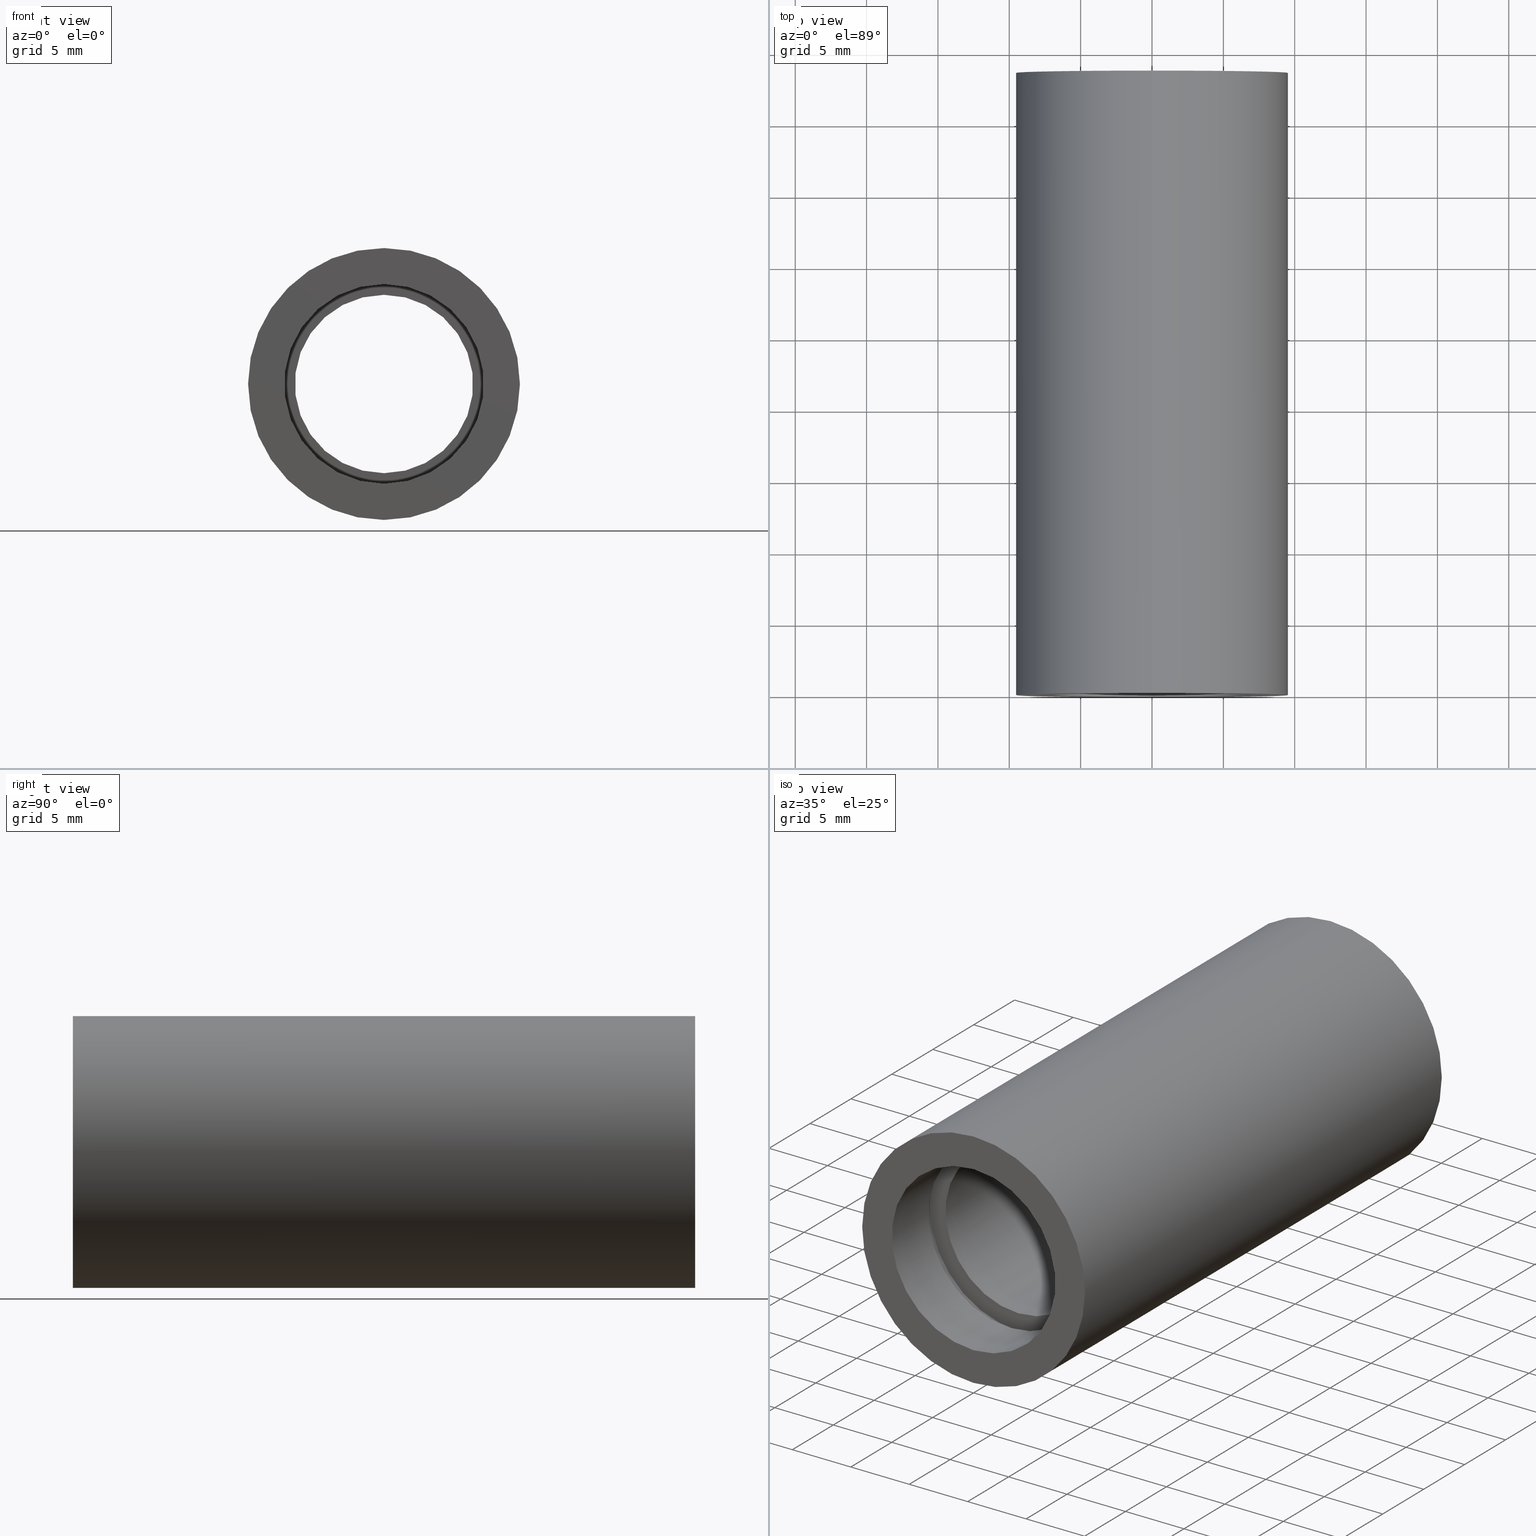
[diagram: canonical four-view strip — front | top / right | iso, engineering-drawing reading convention]
A machine part, canonical four-view strip (front | top / right | iso — engineering-drawing reading convention). The complete STEP part file that produces these views, byte-faithful:
ISO-10303-21;
HEADER;
FILE_DESCRIPTION (( 'STEP AP214' ),
    '1' );
FILE_NAME ('503085.STEP',
    '2019-09-11T02:25:14',
    ( '' ),
    ( '' ),
    'SwSTEP 2.0',
    'SolidWorks 2016',
    '' );
FILE_SCHEMA (( 'AUTOMOTIVE_DESIGN' ));
ENDSEC;

DATA;
#1 = VECTOR ( 'NONE', #55, 1000.000000000000000 ) ;
#2 = DIRECTION ( 'NONE',  ( -0.0000000000000000000, 1.000000000000000000, -0.0000000000000000000 ) ) ;
#3 = AXIS2_PLACEMENT_3D ( 'NONE', #93, #468, #227 ) ;
#4 = SURFACE_STYLE_USAGE ( .BOTH. , #146 ) ;
#5 = DIRECTION ( 'NONE',  ( 0.0000000000000000000, 0.0000000000000000000, 1.000000000000000000 ) ) ;
#6 = VERTEX_POINT ( 'NONE', #369 ) ;
#7 = ORIENTED_EDGE ( 'NONE', *, *, #201, .F. ) ;
#8 = SURFACE_STYLE_USAGE ( .BOTH. , #247 ) ;
#9 = PRODUCT_CONTEXT ( 'NONE', #37, 'mechanical' ) ;
#10 = DIRECTION ( 'NONE',  ( -0.0000000000000000000, 1.000000000000000000, -0.0000000000000000000 ) ) ;
#11 = AXIS2_PLACEMENT_3D ( 'NONE', #404, #603, #166 ) ;
#12 = ADVANCED_BREP_SHAPE_REPRESENTATION ( '503085', ( #85, #111 ), #131 ) ;
#13 = PRESENTATION_STYLE_ASSIGNMENT (( #370 ) ) ;
#14 = EDGE_LOOP ( 'NONE', ( #354, #500 ) ) ;
#15 = CARTESIAN_POINT ( 'NONE',  ( 0.0000000000000000000, 161.3761669434274500, 0.0000000000000000000 ) ) ;
#16 = ORIENTED_EDGE ( 'NONE', *, *, #459, .F. ) ;
#17 = EDGE_CURVE ( 'NONE', #423, #407, #350, .T. ) ;
#18 = DIRECTION ( 'NONE',  ( -0.0000000000000000000, 1.000000000000000000, -0.0000000000000000000 ) ) ;
#19 = DIRECTION ( 'NONE',  ( -0.0000000000000000000, 1.000000000000000000, 0.0000000000000000000 ) ) ;
#20 = ORIENTED_EDGE ( 'NONE', *, *, #168, .F. ) ;
#21 = AXIS2_PLACEMENT_3D ( 'NONE', #315, #89, #269 ) ;
#22 = ORIENTED_EDGE ( 'NONE', *, *, #587, .F. ) ;
#23 = DIRECTION ( 'NONE',  ( 0.0000000000000000000, 0.0000000000000000000, 1.000000000000000000 ) ) ;
#24 = DIRECTION ( 'NONE',  ( 0.0000000000000000000, 0.0000000000000000000, 1.000000000000000000 ) ) ;
#25 = ORIENTED_EDGE ( 'NONE', *, *, #277, .F. ) ;
#26 = ORIENTED_EDGE ( 'NONE', *, *, #174, .T. ) ;
#27 = EDGE_CURVE ( 'NONE', #262, #540, #597, .T. ) ;
#28 = AXIS2_PLACEMENT_3D ( 'NONE', #15, #343, #548 ) ;
#29 = DIRECTION ( 'NONE',  ( -0.0000000000000000000, 1.000000000000000000, -0.0000000000000000000 ) ) ;
#30 = LINE ( 'NONE', #64, #1 ) ;
#31 = FACE_OUTER_BOUND ( 'NONE', #79, .T. ) ;
#32 = CARTESIAN_POINT ( 'NONE',  ( 0.0000000000000000000, 161.3761669434274500, 0.0000000000000000000 ) ) ;
#33 = DIRECTION ( 'NONE',  ( -0.0000000000000000000, 1.000000000000000000, 0.0000000000000000000 ) ) ;
#34 = VECTOR ( 'NONE', #532, 1000.000000000000000 ) ;
#35 = ORIENTED_EDGE ( 'NONE', *, *, #559, .T. ) ;
#36 = ORIENTED_EDGE ( 'NONE', *, *, #563, .T. ) ;
#37 = APPLICATION_CONTEXT ( 'automotive_design' ) ;
#38 = ADVANCED_FACE ( 'NONE', ( #250 ), #566, .F. ) ;
#39 = SURFACE_SIDE_STYLE ('',( #477 ) ) ;
#40 = PRODUCT_DEFINITION_SHAPE ( 'NONE', 'NONE',  #441 ) ;
#41 = AXIS2_PLACEMENT_3D ( 'NONE', #202, #19, #501 ) ;
#42 = FILL_AREA_STYLE_COLOUR ( '', #218 ) ;
#43 = VERTEX_POINT ( 'NONE', #101 ) ;
#44 = VERTEX_POINT ( 'NONE', #185 ) ;
#45 = DIRECTION ( 'NONE',  ( 0.0000000000000000000, 0.0000000000000000000, 1.000000000000000000 ) ) ;
#46 = FACE_OUTER_BOUND ( 'NONE', #425, .T. ) ;
#47 =( NAMED_UNIT ( * ) SI_UNIT ( $, .STERADIAN. ) SOLID_ANGLE_UNIT ( ) );
#48 = PLANE ( 'NONE',  #243 ) ;
#49 = DIRECTION ( 'NONE',  ( 1.000000000000000000, 0.0000000000000000000, 0.0000000000000000000 ) ) ;
#50 =( NAMED_UNIT ( * ) SI_UNIT ( $, .STERADIAN. ) SOLID_ANGLE_UNIT ( ) );
#51 = CARTESIAN_POINT ( 'NONE',  ( 0.0000000000000000000, 38.09999999999999400, 0.0000000000000000000 ) ) ;
#52 = EDGE_LOOP ( 'NONE', ( #16, #106 ) ) ;
#53 = FACE_OUTER_BOUND ( 'NONE', #601, .T. ) ;
#54 = PRESENTATION_LAYER_ASSIGNMENT (  '', '', ( #212 ) ) ;
#55 = DIRECTION ( 'NONE',  ( -0.0000000000000000000, 1.000000000000000000, -0.0000000000000000000 ) ) ;
#56 = AXIS2_PLACEMENT_3D ( 'NONE', #467, #612, #5 ) ;
#57 = PRESENTATION_STYLE_ASSIGNMENT (( #522 ) ) ;
#58 = EDGE_LOOP ( 'NONE', ( #531, #511 ) ) ;
#59 = ORIENTED_EDGE ( 'NONE', *, *, #390, .F. ) ;
#60 = DIRECTION ( 'NONE',  ( -0.0000000000000000000, 1.000000000000000000, -0.0000000000000000000 ) ) ;
#61 = VECTOR ( 'NONE', #541, 1000.000000000000000 ) ;
#62 = EDGE_CURVE ( 'NONE', #540, #262, #610, .T. ) ;
#63 = MECHANICAL_DESIGN_GEOMETRIC_PRESENTATION_REPRESENTATION (  '', ( #212 ), #110 ) ;
#64 = CARTESIAN_POINT ( 'NONE',  ( 1.166476076187856400E-015, 161.3761669434274500, -9.525000000000019900 ) ) ;
#65 = ORIENTED_EDGE ( 'NONE', *, *, #125, .T. ) ;
#66 = ORIENTED_EDGE ( 'NONE', *, *, #236, .T. ) ;
#67 = VECTOR ( 'NONE', #130, 1000.000000000000000 ) ;
#68 = SURFACE_STYLE_FILL_AREA ( #386 ) ;
#69 = CARTESIAN_POINT ( 'NONE',  ( 9.307315673519907200E-016, 4.499999999999976000, -7.600000000000019200 ) ) ;
#70 = COLOUR_RGB ( '',1.000000000000000000, 1.000000000000000000, 1.000000000000000000 ) ;
#71 = ORIENTED_EDGE ( 'NONE', *, *, #180, .F. ) ;
#72 = AXIS2_PLACEMENT_3D ( 'NONE', #460, #170, #609 ) ;
#73 = EDGE_LOOP ( 'NONE', ( #529, #319 ) ) ;
#74 = DIRECTION ( 'NONE',  ( 0.0000000000000000000, 0.0000000000000000000, 1.000000000000000000 ) ) ;
#75 = CIRCLE ( 'NONE', #273, 7.600000000000019200 ) ;
#76 = ADVANCED_FACE ( 'NONE', ( #83, #605 ), #537, .F. ) ;
#77 = DIRECTION ( 'NONE',  ( -0.0000000000000000000, 1.000000000000000000, -0.0000000000000000000 ) ) ;
#78 = LINE ( 'NONE', #143, #34 ) ;
#79 = EDGE_LOOP ( 'NONE', ( #20, #36, #393, #279 ) ) ;
#80 = DIRECTION ( 'NONE',  ( 0.0000000000000000000, 0.0000000000000000000, 1.000000000000000000 ) ) ;
#81 = CIRCLE ( 'NONE', #230, 7.600000000000019200 ) ;
#82 = ADVANCED_FACE ( 'NONE', ( #430, #286 ), #48, .F. ) ;
#83 = FACE_BOUND ( 'NONE', #499, .T. ) ;
#84 =( NAMED_UNIT ( * ) PLANE_ANGLE_UNIT ( ) SI_UNIT ( $, .RADIAN. ) );
#85 = MANIFOLD_SOLID_BREP ( '��ת1', #573 ) ;
#86 = MECHANICAL_DESIGN_GEOMETRIC_PRESENTATION_REPRESENTATION (  '', ( #309 ), #481 ) ;
#87 = FILL_AREA_STYLE ('',( #224 ) ) ;
#88 = ADVANCED_FACE ( 'NONE', ( #31 ), #358, .F. ) ;
#89 = DIRECTION ( 'NONE',  ( -0.0000000000000000000, 1.000000000000000000, -0.0000000000000000000 ) ) ;
#90 = ORIENTED_EDGE ( 'NONE', *, *, #321, .F. ) ;
#91 =( GEOMETRIC_REPRESENTATION_CONTEXT ( 3 ) GLOBAL_UNCERTAINTY_ASSIGNED_CONTEXT ( ( #123 ) ) GLOBAL_UNIT_ASSIGNED_CONTEXT ( ( #231, #318, #184 ) ) REPRESENTATION_CONTEXT ( 'NONE', 'WORKASPACE' ) );
#92 = EDGE_CURVE ( 'NONE', #594, #320, #458, .T. ) ;
#93 = CARTESIAN_POINT ( 'NONE',  ( 0.0000000000000000000, 161.3761669434274500, 0.0000000000000000000 ) ) ;
#94 = LINE ( 'NONE', #122, #237 ) ;
#95 = FACE_BOUND ( 'NONE', #58, .T. ) ;
#96 = CARTESIAN_POINT ( 'NONE',  ( 7.654042494670981300E-016, 38.09999999999999400, -6.250000000000019500 ) ) ;
#97 = DIRECTION ( 'NONE',  ( 0.0000000000000000000, -1.000000000000000000, 0.0000000000000000000 ) ) ;
#98 = AXIS2_PLACEMENT_3D ( 'NONE', #228, #270, #614 ) ;
#99 = AXIS2_PLACEMENT_3D ( 'NONE', #192, #391, #389 ) ;
#100 = CARTESIAN_POINT ( 'NONE',  ( 7.654042494670981300E-016, 5.499999999999976900, -6.250000000000019500 ) ) ;
#101 = CARTESIAN_POINT ( 'NONE',  ( 1.166476076187856400E-015, -2.775557561562891400E-014, -9.525000000000019900 ) ) ;
#102 = DIRECTION ( 'NONE',  ( 0.0000000000000000000, 0.0000000000000000000, 1.000000000000000000 ) ) ;
#103 = PRESENTATION_STYLE_ASSIGNMENT (( #607 ) ) ;
#104 =( LENGTH_UNIT ( ) NAMED_UNIT ( * ) SI_UNIT ( .MILLI., .METRE. ) );
#105 = CARTESIAN_POINT ( 'NONE',  ( 0.0000000000000000000, 161.3761669434274500, 0.0000000000000000000 ) ) ;
#106 = ORIENTED_EDGE ( 'NONE', *, *, #443, .F. ) ;
#107 = CARTESIAN_POINT ( 'NONE',  ( 0.0000000000000000000, 38.09999999999999400, 6.250000000000019500 ) ) ;
#108 = ORIENTED_EDGE ( 'NONE', *, *, #480, .F. ) ;
#109 =( LENGTH_UNIT ( ) NAMED_UNIT ( * ) SI_UNIT ( .MILLI., .METRE. ) );
#110 =( GEOMETRIC_REPRESENTATION_CONTEXT ( 3 ) GLOBAL_UNCERTAINTY_ASSIGNED_CONTEXT ( ( #167 ) ) GLOBAL_UNIT_ASSIGNED_CONTEXT ( ( #104, #479, #282 ) ) REPRESENTATION_CONTEXT ( 'NONE', 'WORKASPACE' ) );
#111 = AXIS2_PLACEMENT_3D ( 'NONE', #325, #332, #49 ) ;
#112 = CARTESIAN_POINT ( 'NONE',  ( 0.0000000000000000000, 161.3761669434274500, 7.200000000000011700 ) ) ;
#113 = EDGE_CURVE ( 'NONE', #407, #44, #395, .T. ) ;
#114 = ORIENTED_EDGE ( 'NONE', *, *, #509, .F. ) ;
#115 = CIRCLE ( 'NONE', #491, 7.000000000000020400 ) ;
#116 =( LENGTH_UNIT ( ) NAMED_UNIT ( * ) SI_UNIT ( .MILLI., .METRE. ) );
#117 = PRODUCT ( '503085', '503085', '', ( #9 ) ) ;
#118 = CARTESIAN_POINT ( 'NONE',  ( 0.0000000000000000000, 43.59999999999998700, 9.525000000000019900 ) ) ;
#119 = AXIS2_PLACEMENT_3D ( 'NONE', #220, #217, #24 ) ;
#120 = PLANE ( 'NONE',  #41 ) ;
#121 = ORIENTED_EDGE ( 'NONE', *, *, #264, .T. ) ;
#122 = CARTESIAN_POINT ( 'NONE',  ( 0.0000000000000000000, 161.3761669434274500, 7.600000000000019200 ) ) ;
#123 = UNCERTAINTY_MEASURE_WITH_UNIT (LENGTH_MEASURE( 1.000000000000000100E-005 ), #231, 'distance_accuracy_value', 'NONE');
#124 = CARTESIAN_POINT ( 'NONE',  ( 0.0000000000000000000, 5.499999999999976900, 0.0000000000000000000 ) ) ;
#125 = EDGE_CURVE ( 'NONE', #408, #368, #419, .T. ) ;
#126 = AXIS2_PLACEMENT_3D ( 'NONE', #375, #152, #232 ) ;
#127 = VERTEX_POINT ( 'NONE', #148 ) ;
#128 = CARTESIAN_POINT ( 'NONE',  ( 0.0000000000000000000, 38.09999999999999400, 0.0000000000000000000 ) ) ;
#129 = CIRCLE ( 'NONE', #11, 7.200000000000012600 ) ;
#130 = DIRECTION ( 'NONE',  ( -0.0000000000000000000, 1.000000000000000000, -0.0000000000000000000 ) ) ;
#131 =( GEOMETRIC_REPRESENTATION_CONTEXT ( 3 ) GLOBAL_UNCERTAINTY_ASSIGNED_CONTEXT ( ( #599 ) ) GLOBAL_UNIT_ASSIGNED_CONTEXT ( ( #623, #619, #47 ) ) REPRESENTATION_CONTEXT ( 'NONE', 'WORKASPACE' ) );
#132 = PLANE ( 'NONE',  #445 ) ;
#133 = ADVANCED_FACE ( 'NONE', ( #556 ), #483, .F. ) ;
#134 = DIRECTION ( 'NONE',  ( -0.0000000000000000000, 1.000000000000000000, -0.0000000000000000000 ) ) ;
#135 = EDGE_LOOP ( 'NONE', ( #267, #66, #561, #223 ) ) ;
#136 = ADVANCED_FACE ( 'NONE', ( #95, #590 ), #482, .F. ) ;
#137 = ORIENTED_EDGE ( 'NONE', *, *, #621, .T. ) ;
#138 =( LENGTH_UNIT ( ) NAMED_UNIT ( * ) SI_UNIT ( .MILLI., .METRE. ) );
#139 = AXIS2_PLACEMENT_3D ( 'NONE', #256, #33, #74 ) ;
#140 = FILL_AREA_STYLE ('',( #562 ) ) ;
#141 = ADVANCED_FACE ( 'NONE', ( #339 ), #496, .T. ) ;
#142 = EDGE_LOOP ( 'NONE', ( #582, #472, #137, #387 ) ) ;
#143 = CARTESIAN_POINT ( 'NONE',  ( 9.307315673519907200E-016, 161.3761669434274500, -7.600000000000019200 ) ) ;
#144 = ORIENTED_EDGE ( 'NONE', *, *, #246, .T. ) ;
#145 = EDGE_CURVE ( 'NONE', #455, #305, #183, .T. ) ;
#146 = SURFACE_SIDE_STYLE ('',( #229 ) ) ;
#147 = VECTOR ( 'NONE', #518, 1000.000000000000000 ) ;
#148 = CARTESIAN_POINT ( 'NONE',  ( 0.0000000000000000000, 38.09999999999999400, 7.600000000000019200 ) ) ;
#149 = DIRECTION ( 'NONE',  ( 0.0000000000000000000, 0.0000000000000000000, 1.000000000000000000 ) ) ;
#150 = ORIENTED_EDGE ( 'NONE', *, *, #264, .F. ) ;
#151 = ORIENTED_EDGE ( 'NONE', *, *, #563, .F. ) ;
#152 = DIRECTION ( 'NONE',  ( 0.0000000000000000000, -1.000000000000000000, 0.0000000000000000000 ) ) ;
#153 = PRESENTATION_LAYER_ASSIGNMENT (  '', '', ( #613 ) ) ;
#154 =( NAMED_UNIT ( * ) SI_UNIT ( $, .STERADIAN. ) SOLID_ANGLE_UNIT ( ) );
#155 = CARTESIAN_POINT ( 'NONE',  ( 0.0000000000000000000, -2.775557561562891400E-014, 7.000000000000020400 ) ) ;
#156 = AXIS2_PLACEMENT_3D ( 'NONE', #238, #97, #293 ) ;
#157 = VERTEX_POINT ( 'NONE', #444 ) ;
#158 = ORIENTED_EDGE ( 'NONE', *, *, #145, .T. ) ;
#159 = STYLED_ITEM ( 'NONE', ( #331 ), #38 ) ;
#160 = CARTESIAN_POINT ( 'NONE',  ( 0.0000000000000000000, 161.3761669434274500, 9.525000000000019900 ) ) ;
#161 =( GEOMETRIC_REPRESENTATION_CONTEXT ( 3 ) GLOBAL_UNCERTAINTY_ASSIGNED_CONTEXT ( ( #505 ) ) GLOBAL_UNIT_ASSIGNED_CONTEXT ( ( #109, #333, #154 ) ) REPRESENTATION_CONTEXT ( 'NONE', 'WORKASPACE' ) );
#162 = FILL_AREA_STYLE ('',( #558 ) ) ;
#163 = VERTEX_POINT ( 'NONE', #155 ) ;
#164 = ORIENTED_EDGE ( 'NONE', *, *, #180, .T. ) ;
#165 = DIRECTION ( 'NONE',  ( -0.0000000000000000000, 1.000000000000000000, -0.0000000000000000000 ) ) ;
#166 = DIRECTION ( 'NONE',  ( 0.0000000000000000000, 0.0000000000000000000, 1.000000000000000000 ) ) ;
#167 = UNCERTAINTY_MEASURE_WITH_UNIT (LENGTH_MEASURE( 1.000000000000000100E-005 ), #104, 'distance_accuracy_value', 'NONE');
#168 = EDGE_CURVE ( 'NONE', #328, #440, #75, .T. ) ;
#169 = AXIS2_PLACEMENT_3D ( 'NONE', #199, #388, #593 ) ;
#170 = DIRECTION ( 'NONE',  ( -0.0000000000000000000, 1.000000000000000000, -0.0000000000000000000 ) ) ;
#171 = CARTESIAN_POINT ( 'NONE',  ( 7.654042494670981300E-016, 161.3761669434274500, -6.250000000000019500 ) ) ;
#172 = CYLINDRICAL_SURFACE ( 'NONE', #169, 7.000000000000020400 ) ;
#173 = FILL_AREA_STYLE_COLOUR ( '', #176 ) ;
#174 = EDGE_CURVE ( 'NONE', #399, #320, #382, .T. ) ;
#175 = ORIENTED_EDGE ( 'NONE', *, *, #125, .F. ) ;
#176 = COLOUR_RGB ( '',1.000000000000000000, 1.000000000000000000, 1.000000000000000000 ) ;
#177 = AXIS2_PLACEMENT_3D ( 'NONE', #295, #303, #244 ) ;
#178 = ORIENTED_EDGE ( 'NONE', *, *, #17, .F. ) ;
#179 = ORIENTED_EDGE ( 'NONE', *, *, #426, .F. ) ;
#180 = EDGE_CURVE ( 'NONE', #368, #6, #301, .T. ) ;
#181 = CARTESIAN_POINT ( 'NONE',  ( 0.0000000000000000000, 161.3761669434274500, 6.250000000000019500 ) ) ;
#182 = VECTOR ( 'NONE', #10, 1000.000000000000000 ) ;
#183 = CIRCLE ( 'NONE', #99, 7.600000000000019200 ) ;
#184 =( NAMED_UNIT ( * ) SI_UNIT ( $, .STERADIAN. ) SOLID_ANGLE_UNIT ( ) );
#185 = CARTESIAN_POINT ( 'NONE',  ( 0.0000000000000000000, 4.499999999999976000, 7.000000000000020400 ) ) ;
#186 = EDGE_CURVE ( 'NONE', #545, #377, #198, .T. ) ;
#187 = PRESENTATION_LAYER_ASSIGNMENT (  '', '', ( #503 ) ) ;
#188 = DIRECTION ( 'NONE',  ( -0.0000000000000000000, 1.000000000000000000, -0.0000000000000000000 ) ) ;
#189 = CARTESIAN_POINT ( 'NONE',  ( 0.0000000000000000000, 39.09999999999999400, 0.0000000000000000000 ) ) ;
#190 = CIRCLE ( 'NONE', #72, 9.525000000000019900 ) ;
#191 = DIRECTION ( 'NONE',  ( 0.0000000000000000000, -0.0000000000000000000, -1.000000000000000000 ) ) ;
#192 = CARTESIAN_POINT ( 'NONE',  ( 0.0000000000000000000, 39.09999999999999400, 0.0000000000000000000 ) ) ;
#193 = ORIENTED_EDGE ( 'NONE', *, *, #621, .F. ) ;
#194 = ORIENTED_EDGE ( 'NONE', *, *, #443, .T. ) ;
#195 = EDGE_CURVE ( 'NONE', #6, #615, #356, .T. ) ;
#196 = DIRECTION ( 'NONE',  ( 0.0000000000000000000, 0.0000000000000000000, 1.000000000000000000 ) ) ;
#197 = AXIS2_PLACEMENT_3D ( 'NONE', #355, #555, #23 ) ;
#198 = CIRCLE ( 'NONE', #177, 7.600000000000019200 ) ;
#199 = CARTESIAN_POINT ( 'NONE',  ( 0.0000000000000000000, 161.3761669434274500, 0.0000000000000000000 ) ) ;
#200 = CARTESIAN_POINT ( 'NONE',  ( 8.817456953860957100E-016, 161.3761669434274500, -7.200000000000011700 ) ) ;
#201 = EDGE_CURVE ( 'NONE', #408, #615, #495, .T. ) ;
#202 = CARTESIAN_POINT ( 'NONE',  ( 6.250000000000019500, 5.499999999999983100, 0.0000000000000000000 ) ) ;
#203 = ORIENTED_EDGE ( 'NONE', *, *, #587, .T. ) ;
#204 = CARTESIAN_POINT ( 'NONE',  ( 0.0000000000000000000, 161.3761669434274500, 0.0000000000000000000 ) ) ;
#205 = CIRCLE ( 'NONE', #565, 7.600000000000019200 ) ;
#206 = AXIS2_PLACEMENT_3D ( 'NONE', #448, #165, #494 ) ;
#207 = DIRECTION ( 'NONE',  ( -0.0000000000000000000, 1.000000000000000000, -0.0000000000000000000 ) ) ;
#208 = PRESENTATION_STYLE_ASSIGNMENT (( #420 ) ) ;
#209 = EDGE_LOOP ( 'NONE', ( #114, #300, #624, #59 ) ) ;
#210 = CYLINDRICAL_SURFACE ( 'NONE', #403, 7.600000000000019200 ) ;
#211 = CARTESIAN_POINT ( 'NONE',  ( 0.0000000000000000000, 161.3761669434274500, 7.600000000000019200 ) ) ;
#212 = STYLED_ITEM ( 'NONE', ( #302 ), #85 ) ;
#213 = COLOUR_RGB ( '',1.000000000000000000, 1.000000000000000000, 1.000000000000000000 ) ;
#214 = DIRECTION ( 'NONE',  ( -0.0000000000000000000, 1.000000000000000000, -0.0000000000000000000 ) ) ;
#215 = EDGE_CURVE ( 'NONE', #163, #423, #115, .T. ) ;
#216 = AXIS2_PLACEMENT_3D ( 'NONE', #490, #486, #298 ) ;
#217 = DIRECTION ( 'NONE',  ( -0.0000000000000000000, 1.000000000000000000, -0.0000000000000000000 ) ) ;
#218 = COLOUR_RGB ( '',1.000000000000000000, 1.000000000000000000, 1.000000000000000000 ) ;
#219 = ORIENTED_EDGE ( 'NONE', *, *, #321, .T. ) ;
#220 = CARTESIAN_POINT ( 'NONE',  ( 0.0000000000000000000, -2.775557561562891400E-014, 0.0000000000000000000 ) ) ;
#221 = SURFACE_STYLE_FILL_AREA ( #415 ) ;
#222 = CARTESIAN_POINT ( 'NONE',  ( 9.307315673519907200E-016, 38.09999999999999400, -7.600000000000019200 ) ) ;
#223 = ORIENTED_EDGE ( 'NONE', *, *, #174, .F. ) ;
#224 = FILL_AREA_STYLE_COLOUR ( '', #571 ) ;
#225 = ADVANCED_FACE ( 'NONE', ( #514 ), #172, .F. ) ;
#226 = EDGE_LOOP ( 'NONE', ( #151, #312, #235, #512 ) ) ;
#227 = DIRECTION ( 'NONE',  ( 0.0000000000000000000, 0.0000000000000000000, 1.000000000000000000 ) ) ;
#228 = CARTESIAN_POINT ( 'NONE',  ( 0.0000000000000000000, 38.09999999999999400, 0.0000000000000000000 ) ) ;
#229 = SURFACE_STYLE_FILL_AREA ( #429 ) ;
#230 = AXIS2_PLACEMENT_3D ( 'NONE', #128, #29, #360 ) ;
#231 =( LENGTH_UNIT ( ) NAMED_UNIT ( * ) SI_UNIT ( .MILLI., .METRE. ) );
#232 = DIRECTION ( 'NONE',  ( 0.0000000000000000000, -0.0000000000000000000, -1.000000000000000000 ) ) ;
#233 = CARTESIAN_POINT ( 'NONE',  ( 9.307315673519907200E-016, 161.3761669434274500, -7.600000000000019200 ) ) ;
#234 = SURFACE_STYLE_USAGE ( .BOTH. , #289 ) ;
#235 = ORIENTED_EDGE ( 'NONE', *, *, #345, .T. ) ;
#236 = EDGE_CURVE ( 'NONE', #43, #594, #30, .T. ) ;
#237 = VECTOR ( 'NONE', #310, 1000.000000000000000 ) ;
#238 = CARTESIAN_POINT ( 'NONE',  ( 7.000000000000020400, 4.499999999999983100, 0.0000000000000000000 ) ) ;
#239 = DIRECTION ( 'NONE',  ( 0.0000000000000000000, 0.0000000000000000000, 1.000000000000000000 ) ) ;
#240 = AXIS2_PLACEMENT_3D ( 'NONE', #324, #374, #45 ) ;
#241 = ORIENTED_EDGE ( 'NONE', *, *, #113, .F. ) ;
#242 = PRESENTATION_STYLE_ASSIGNMENT (( #549 ) ) ;
#243 = AXIS2_PLACEMENT_3D ( 'NONE', #432, #539, #191 ) ;
#244 = DIRECTION ( 'NONE',  ( 0.0000000000000000000, 0.0000000000000000000, 1.000000000000000000 ) ) ;
#245 = ORIENTED_EDGE ( 'NONE', *, *, #236, .F. ) ;
#246 = EDGE_CURVE ( 'NONE', #157, #553, #488, .T. ) ;
#247 = SURFACE_SIDE_STYLE ('',( #502 ) ) ;
#248 = AXIS2_PLACEMENT_3D ( 'NONE', #253, #18, #451 ) ;
#249 = CIRCLE ( 'NONE', #572, 7.600000000000019200 ) ;
#250 = FACE_OUTER_BOUND ( 'NONE', #297, .T. ) ;
#251 = DIRECTION ( 'NONE',  ( -0.0000000000000000000, 1.000000000000000000, -0.0000000000000000000 ) ) ;
#252 = DIRECTION ( 'NONE',  ( -0.0000000000000000000, 1.000000000000000000, -0.0000000000000000000 ) ) ;
#253 = CARTESIAN_POINT ( 'NONE',  ( 0.0000000000000000000, 5.499999999999976900, 0.0000000000000000000 ) ) ;
#254 = EDGE_LOOP ( 'NONE', ( #144, #400 ) ) ;
#255 = MECHANICAL_DESIGN_GEOMETRIC_PRESENTATION_REPRESENTATION (  '', ( #385 ), #317 ) ;
#256 = CARTESIAN_POINT ( 'NONE',  ( 7.000000000000020400, -1.634585625335647100E-014, 0.0000000000000000000 ) ) ;
#257 = CIRCLE ( 'NONE', #197, 9.525000000000019900 ) ;
#258 = EDGE_CURVE ( 'NONE', #44, #407, #534, .T. ) ;
#259 = STYLED_ITEM ( 'NONE', ( #13 ), #524 ) ;
#260 = SURFACE_SIDE_STYLE ('',( #221 ) ) ;
#261 = ORIENTED_EDGE ( 'NONE', *, *, #186, .F. ) ;
#262 = VERTEX_POINT ( 'NONE', #107 ) ;
#263 =( NAMED_UNIT ( * ) SI_UNIT ( $, .STERADIAN. ) SOLID_ANGLE_UNIT ( ) );
#264 = EDGE_CURVE ( 'NONE', #368, #408, #338, .T. ) ;
#265 = DIRECTION ( 'NONE',  ( 0.0000000000000000000, 0.0000000000000000000, 1.000000000000000000 ) ) ;
#266 = ADVANCED_FACE ( 'NONE', ( #457 ), #428, .F. ) ;
#267 = ORIENTED_EDGE ( 'NONE', *, *, #459, .T. ) ;
#268 = EDGE_LOOP ( 'NONE', ( #121, #65 ) ) ;
#269 = DIRECTION ( 'NONE',  ( 0.0000000000000000000, 0.0000000000000000000, 1.000000000000000000 ) ) ;
#270 = DIRECTION ( 'NONE',  ( -0.0000000000000000000, 1.000000000000000000, -0.0000000000000000000 ) ) ;
#271 = ADVANCED_FACE ( 'NONE', ( #46 ), #210, .F. ) ;
#272 = CYLINDRICAL_SURFACE ( 'NONE', #381, 9.525000000000019900 ) ;
#273 = AXIS2_PLACEMENT_3D ( 'NONE', #442, #60, #543 ) ;
#274 =( NAMED_UNIT ( * ) SI_UNIT ( $, .STERADIAN. ) SOLID_ANGLE_UNIT ( ) );
#275 = UNCERTAINTY_MEASURE_WITH_UNIT (LENGTH_MEASURE( 1.000000000000000100E-005 ), #285, 'distance_accuracy_value', 'NONE');
#276 = SURFACE_SIDE_STYLE ('',( #406 ) ) ;
#277 = EDGE_CURVE ( 'NONE', #553, #157, #349, .T. ) ;
#278 = FACE_OUTER_BOUND ( 'NONE', #433, .T. ) ;
#279 = ORIENTED_EDGE ( 'NONE', *, *, #345, .F. ) ;
#280 = DIRECTION ( 'NONE',  ( 0.0000000000000000000, 0.0000000000000000000, 1.000000000000000000 ) ) ;
#281 = ORIENTED_EDGE ( 'NONE', *, *, #62, .F. ) ;
#282 =( NAMED_UNIT ( * ) SI_UNIT ( $, .STERADIAN. ) SOLID_ANGLE_UNIT ( ) );
#283 = CARTESIAN_POINT ( 'NONE',  ( 8.817456953860959100E-016, 43.59999999999998700, -7.200000000000013500 ) ) ;
#284 = COLOUR_RGB ( '',1.000000000000000000, 1.000000000000000000, 1.000000000000000000 ) ;
#285 =( LENGTH_UNIT ( ) NAMED_UNIT ( * ) SI_UNIT ( .MILLI., .METRE. ) );
#286 = FACE_OUTER_BOUND ( 'NONE', #311, .T. ) ;
#287 = EDGE_CURVE ( 'NONE', #615, #6, #129, .T. ) ;
#288 = STYLED_ITEM ( 'NONE', ( #547 ), #225 ) ;
#289 = SURFACE_SIDE_STYLE ('',( #68 ) ) ;
#290 = CYLINDRICAL_SURFACE ( 'NONE', #240, 7.600000000000019200 ) ;
#291 = EDGE_LOOP ( 'NONE', ( #245, #194, #26, #454 ) ) ;
#292 = ORIENTED_EDGE ( 'NONE', *, *, #390, .T. ) ;
#293 = DIRECTION ( 'NONE',  ( 0.0000000000000000000, -0.0000000000000000000, -1.000000000000000000 ) ) ;
#294 = DIRECTION ( 'NONE',  ( 0.0000000000000000000, 0.0000000000000000000, 1.000000000000000000 ) ) ;
#295 = CARTESIAN_POINT ( 'NONE',  ( 0.0000000000000000000, 5.499999999999976900, 0.0000000000000000000 ) ) ;
#296 = EDGE_CURVE ( 'NONE', #440, #328, #364, .T. ) ;
#297 = EDGE_LOOP ( 'NONE', ( #25, #304, #608, #193 ) ) ;
#298 = DIRECTION ( 'NONE',  ( 0.0000000000000000000, 0.0000000000000000000, 1.000000000000000000 ) ) ;
#299 = PRESENTATION_LAYER_ASSIGNMENT (  '', '', ( #259 ) ) ;
#300 = ORIENTED_EDGE ( 'NONE', *, *, #17, .T. ) ;
#301 = LINE ( 'NONE', #112, #61 ) ;
#302 = PRESENTATION_STYLE_ASSIGNMENT (( #4 ) ) ;
#303 = DIRECTION ( 'NONE',  ( -0.0000000000000000000, 1.000000000000000000, -0.0000000000000000000 ) ) ;
#304 = ORIENTED_EDGE ( 'NONE', *, *, #373, .T. ) ;
#305 = VERTEX_POINT ( 'NONE', #401 ) ;
#306 = CARTESIAN_POINT ( 'NONE',  ( 0.0000000000000000000, 4.499999999999976000, 0.0000000000000000000 ) ) ;
#307 = LINE ( 'NONE', #365, #314 ) ;
#308 = DIRECTION ( 'NONE',  ( -0.0000000000000000000, 1.000000000000000000, -0.0000000000000000000 ) ) ;
#309 = STYLED_ITEM ( 'NONE', ( #103 ), #520 ) ;
#310 = DIRECTION ( 'NONE',  ( -0.0000000000000000000, 1.000000000000000000, -0.0000000000000000000 ) ) ;
#311 = EDGE_LOOP ( 'NONE', ( #219, #478 ) ) ;
#312 = ORIENTED_EDGE ( 'NONE', *, *, #296, .F. ) ;
#313 = PRESENTATION_LAYER_ASSIGNMENT (  '', '', ( #159 ) ) ;
#314 = VECTOR ( 'NONE', #77, 1000.000000000000000 ) ;
#315 = CARTESIAN_POINT ( 'NONE',  ( 0.0000000000000000000, 161.3761669434274500, 0.0000000000000000000 ) ) ;
#316 = ADVANCED_FACE ( 'NONE', ( #604, #526 ), #120, .F. ) ;
#317 =( GEOMETRIC_REPRESENTATION_CONTEXT ( 3 ) GLOBAL_UNCERTAINTY_ASSIGNED_CONTEXT ( ( #340 ) ) GLOBAL_UNIT_ASSIGNED_CONTEXT ( ( #525, #431, #330 ) ) REPRESENTATION_CONTEXT ( 'NONE', 'WORKASPACE' ) );
#318 =( NAMED_UNIT ( * ) PLANE_ANGLE_UNIT ( ) SI_UNIT ( $, .RADIAN. ) );
#319 = ORIENTED_EDGE ( 'NONE', *, *, #509, .T. ) ;
#320 = VERTEX_POINT ( 'NONE', #118 ) ;
#321 = EDGE_CURVE ( 'NONE', #127, #585, #249, .T. ) ;
#322 = LINE ( 'NONE', #171, #617 ) ;
#323 = AXIS2_PLACEMENT_3D ( 'NONE', #105, #476, #102 ) ;
#324 = CARTESIAN_POINT ( 'NONE',  ( 0.0000000000000000000, 161.3761669434274500, 0.0000000000000000000 ) ) ;
#325 = CARTESIAN_POINT ( 'NONE',  ( 0.0000000000000000000, 0.0000000000000000000, 0.0000000000000000000 ) ) ;
#326 =( NAMED_UNIT ( * ) PLANE_ANGLE_UNIT ( ) SI_UNIT ( $, .RADIAN. ) );
#327 = LINE ( 'NONE', #181, #538 ) ;
#328 = VERTEX_POINT ( 'NONE', #69 ) ;
#329 = DIRECTION ( 'NONE',  ( -0.0000000000000000000, 1.000000000000000000, -0.0000000000000000000 ) ) ;
#330 =( NAMED_UNIT ( * ) SI_UNIT ( $, .STERADIAN. ) SOLID_ANGLE_UNIT ( ) );
#331 = PRESENTATION_STYLE_ASSIGNMENT (( #234 ) ) ;
#332 = DIRECTION ( 'NONE',  ( 0.0000000000000000000, 0.0000000000000000000, 1.000000000000000000 ) ) ;
#333 =( NAMED_UNIT ( * ) PLANE_ANGLE_UNIT ( ) SI_UNIT ( $, .RADIAN. ) );
#334 = AXIS2_PLACEMENT_3D ( 'NONE', #497, #551, #352 ) ;
#335 = ORIENTED_EDGE ( 'NONE', *, *, #480, .T. ) ;
#336 = APPLICATION_PROTOCOL_DEFINITION ( 'draft international standard', 'automotive_design', 1998, #536 ) ;
#337 = ORIENTED_EDGE ( 'NONE', *, *, #215, .F. ) ;
#338 = CIRCLE ( 'NONE', #334, 7.200000000000011700 ) ;
#339 = FACE_OUTER_BOUND ( 'NONE', #135, .T. ) ;
#340 = UNCERTAINTY_MEASURE_WITH_UNIT (LENGTH_MEASURE( 1.000000000000000100E-005 ), #525, 'distance_accuracy_value', 'NONE');
#341 = FILL_AREA_STYLE ('',( #346 ) ) ;
#342 = EDGE_CURVE ( 'NONE', #320, #594, #257, .T. ) ;
#343 = DIRECTION ( 'NONE',  ( -0.0000000000000000000, 1.000000000000000000, -0.0000000000000000000 ) ) ;
#344 = LINE ( 'NONE', #233, #560 ) ;
#345 = EDGE_CURVE ( 'NONE', #440, #377, #94, .T. ) ;
#346 = FILL_AREA_STYLE_COLOUR ( '', #284 ) ;
#347 = PRESENTATION_LAYER_ASSIGNMENT (  '', '', ( #288 ) ) ;
#348 = DIRECTION ( 'NONE',  ( 0.0000000000000000000, 0.0000000000000000000, 1.000000000000000000 ) ) ;
#349 = CIRCLE ( 'NONE', #248, 6.250000000000019500 ) ;
#350 = LINE ( 'NONE', #469, #147 ) ;
#351 = PRODUCT_RELATED_PRODUCT_CATEGORY ( 'part', '', ( #117 ) ) ;
#352 = DIRECTION ( 'NONE',  ( 0.0000000000000000000, 0.0000000000000000000, 1.000000000000000000 ) ) ;
#353 = ORIENTED_EDGE ( 'NONE', *, *, #287, .T. ) ;
#354 = ORIENTED_EDGE ( 'NONE', *, *, #296, .T. ) ;
#355 = CARTESIAN_POINT ( 'NONE',  ( 0.0000000000000000000, 43.59999999999998700, 0.0000000000000000000 ) ) ;
#356 = CIRCLE ( 'NONE', #216, 7.200000000000012600 ) ;
#357 = CARTESIAN_POINT ( 'NONE',  ( 0.0000000000000000000, 39.09999999999999400, 7.200000000000011700 ) ) ;
#358 = CYLINDRICAL_SURFACE ( 'NONE', #416, 7.600000000000019200 ) ;
#359 = AXIS2_PLACEMENT_3D ( 'NONE', #306, #308, #348 ) ;
#360 = DIRECTION ( 'NONE',  ( 0.0000000000000000000, 0.0000000000000000000, 1.000000000000000000 ) ) ;
#361 = ORIENTED_EDGE ( 'NONE', *, *, #145, .F. ) ;
#362 = ADVANCED_FACE ( 'NONE', ( #589, #402 ), #595, .F. ) ;
#363 = DIRECTION ( 'NONE',  ( -0.0000000000000000000, 1.000000000000000000, -0.0000000000000000000 ) ) ;
#364 = CIRCLE ( 'NONE', #206, 7.600000000000019200 ) ;
#365 = CARTESIAN_POINT ( 'NONE',  ( 0.0000000000000000000, 161.3761669434274500, 7.000000000000020400 ) ) ;
#366 = CARTESIAN_POINT ( 'NONE',  ( 7.200000000000011700, 39.09999999999998700, 0.0000000000000000000 ) ) ;
#367 = APPLICATION_PROTOCOL_DEFINITION ( 'draft international standard', 'automotive_design', 1998, #37 ) ;
#368 = VERTEX_POINT ( 'NONE', #357 ) ;
#369 = CARTESIAN_POINT ( 'NONE',  ( 0.0000000000000000000, 43.59999999999998700, 7.200000000000012600 ) ) ;
#370 = SURFACE_STYLE_USAGE ( .BOTH. , #39 ) ;
#371 = SURFACE_STYLE_FILL_AREA ( #162 ) ;
#372 = ADVANCED_FACE ( 'NONE', ( #564 ), #272, .T. ) ;
#373 = EDGE_CURVE ( 'NONE', #553, #540, #322, .T. ) ;
#374 = DIRECTION ( 'NONE',  ( -0.0000000000000000000, 1.000000000000000000, -0.0000000000000000000 ) ) ;
#375 = CARTESIAN_POINT ( 'NONE',  ( 7.200000000000012600, 43.59999999999998700, 0.0000000000000000000 ) ) ;
#376 = FACE_OUTER_BOUND ( 'NONE', #226, .T. ) ;
#377 = VERTEX_POINT ( 'NONE', #465 ) ;
#378 = ORIENTED_EDGE ( 'NONE', *, *, #92, .T. ) ;
#379 = DIRECTION ( 'NONE',  ( -0.0000000000000000000, 1.000000000000000000, -0.0000000000000000000 ) ) ;
#380 = MECHANICAL_DESIGN_GEOMETRIC_PRESENTATION_REPRESENTATION (  '', ( #159 ), #413 ) ;
#381 = AXIS2_PLACEMENT_3D ( 'NONE', #32, #418, #567 ) ;
#382 = LINE ( 'NONE', #160, #411 ) ;
#383 = DIRECTION ( 'NONE',  ( 0.0000000000000000000, 0.0000000000000000000, 1.000000000000000000 ) ) ;
#384 = DIRECTION ( 'NONE',  ( 0.0000000000000000000, 0.0000000000000000000, 1.000000000000000000 ) ) ;
#385 = STYLED_ITEM ( 'NONE', ( #208 ), #12 ) ;
#386 = FILL_AREA_STYLE ('',( #521 ) ) ;
#387 = ORIENTED_EDGE ( 'NONE', *, *, #27, .T. ) ;
#388 = DIRECTION ( 'NONE',  ( -0.0000000000000000000, 1.000000000000000000, -0.0000000000000000000 ) ) ;
#389 = DIRECTION ( 'NONE',  ( 0.0000000000000000000, 0.0000000000000000000, 1.000000000000000000 ) ) ;
#390 = EDGE_CURVE ( 'NONE', #163, #44, #307, .T. ) ;
#391 = DIRECTION ( 'NONE',  ( -0.0000000000000000000, 1.000000000000000000, -0.0000000000000000000 ) ) ;
#392 = SURFACE_STYLE_FILL_AREA ( #87 ) ;
#393 = ORIENTED_EDGE ( 'NONE', *, *, #186, .T. ) ;
#394 = ORIENTED_EDGE ( 'NONE', *, *, #342, .T. ) ;
#395 = CIRCLE ( 'NONE', #602, 7.000000000000020400 ) ;
#396 = MECHANICAL_DESIGN_GEOMETRIC_PRESENTATION_REPRESENTATION (  '', ( #613 ), #91 ) ;
#397 = CARTESIAN_POINT ( 'NONE',  ( 0.0000000000000000000, 161.3761669434274500, 0.0000000000000000000 ) ) ;
#398 = DIRECTION ( 'NONE',  ( 0.0000000000000000000, 0.0000000000000000000, 1.000000000000000000 ) ) ;
#399 = VERTEX_POINT ( 'NONE', #456 ) ;
#400 = ORIENTED_EDGE ( 'NONE', *, *, #277, .T. ) ;
#401 = CARTESIAN_POINT ( 'NONE',  ( 0.0000000000000000000, 39.09999999999999400, 7.600000000000019200 ) ) ;
#402 = FACE_BOUND ( 'NONE', #73, .T. ) ;
#403 = AXIS2_PLACEMENT_3D ( 'NONE', #204, #252, #398 ) ;
#404 = CARTESIAN_POINT ( 'NONE',  ( 0.0000000000000000000, 43.59999999999998700, 0.0000000000000000000 ) ) ;
#405 = SHAPE_DEFINITION_REPRESENTATION ( #40, #12 ) ;
#406 = SURFACE_STYLE_FILL_AREA ( #616 ) ;
#407 = VERTEX_POINT ( 'NONE', #508 ) ;
#408 = VERTEX_POINT ( 'NONE', #519 ) ;
#409 = CARTESIAN_POINT ( 'NONE',  ( 8.572527594031496900E-016, -2.775557561562891400E-014, -7.000000000000020400 ) ) ;
#410 = UNCERTAINTY_MEASURE_WITH_UNIT (LENGTH_MEASURE( 1.000000000000000100E-005 ), #138, 'distance_accuracy_value', 'NONE');
#411 = VECTOR ( 'NONE', #588, 1000.000000000000000 ) ;
#412 = CARTESIAN_POINT ( 'NONE',  ( 0.0000000000000000000, -2.775557561562891400E-014, 0.0000000000000000000 ) ) ;
#413 =( GEOMETRIC_REPRESENTATION_CONTEXT ( 3 ) GLOBAL_UNCERTAINTY_ASSIGNED_CONTEXT ( ( #275 ) ) GLOBAL_UNIT_ASSIGNED_CONTEXT ( ( #285, #326, #50 ) ) REPRESENTATION_CONTEXT ( 'NONE', 'WORKASPACE' ) );
#414 = PRESENTATION_LAYER_ASSIGNMENT (  '', '', ( #309 ) ) ;
#415 = FILL_AREA_STYLE ('',( #173 ) ) ;
#416 = AXIS2_PLACEMENT_3D ( 'NONE', #581, #2, #384 ) ;
#417 = ORIENTED_EDGE ( 'NONE', *, *, #515, .F. ) ;
#418 = DIRECTION ( 'NONE',  ( -0.0000000000000000000, 1.000000000000000000, -0.0000000000000000000 ) ) ;
#419 = CIRCLE ( 'NONE', #450, 7.200000000000011700 ) ;
#420 = SURFACE_STYLE_USAGE ( .BOTH. , #579 ) ;
#421 = CARTESIAN_POINT ( 'NONE',  ( 9.307315673519907200E-016, 5.499999999999976900, -7.600000000000019200 ) ) ;
#422 = FACE_OUTER_BOUND ( 'NONE', #586, .T. ) ;
#423 = VERTEX_POINT ( 'NONE', #409 ) ;
#424 = CARTESIAN_POINT ( 'NONE',  ( 0.0000000000000000000, 39.09999999999999400, 0.0000000000000000000 ) ) ;
#425 = EDGE_LOOP ( 'NONE', ( #22, #90, #335, #35 ) ) ;
#426 = EDGE_CURVE ( 'NONE', #377, #545, #205, .T. ) ;
#427 = AXIS2_PLACEMENT_3D ( 'NONE', #436, #591, #294 ) ;
#428 = CYLINDRICAL_SURFACE ( 'NONE', #471, 6.250000000000019500 ) ;
#429 = FILL_AREA_STYLE ('',( #535 ) ) ;
#430 = FACE_BOUND ( 'NONE', #438, .T. ) ;
#431 =( NAMED_UNIT ( * ) PLANE_ANGLE_UNIT ( ) SI_UNIT ( $, .RADIAN. ) );
#432 = CARTESIAN_POINT ( 'NONE',  ( 6.250000000000019500, 38.09999999999998700, 0.0000000000000000000 ) ) ;
#433 = EDGE_LOOP ( 'NONE', ( #175, #546, #353, #71 ) ) ;
#434 = CIRCLE ( 'NONE', #119, 7.000000000000020400 ) ;
#435 = CARTESIAN_POINT ( 'NONE',  ( 0.0000000000000000000, 4.499999999999976000, 0.0000000000000000000 ) ) ;
#436 = CARTESIAN_POINT ( 'NONE',  ( 0.0000000000000000000, 5.499999999999976900, 0.0000000000000000000 ) ) ;
#437 = MECHANICAL_DESIGN_GEOMETRIC_PRESENTATION_REPRESENTATION (  '', ( #503 ), #542 ) ;
#438 = EDGE_LOOP ( 'NONE', ( #552, #281 ) ) ;
#439 = CARTESIAN_POINT ( 'NONE',  ( 0.0000000000000000000, -2.775557561562891400E-014, 0.0000000000000000000 ) ) ;
#440 = VERTEX_POINT ( 'NONE', #517 ) ;
#441 = PRODUCT_DEFINITION ( 'δ֪', '', #507, #584 ) ;
#442 = CARTESIAN_POINT ( 'NONE',  ( 0.0000000000000000000, 4.499999999999976000, 0.0000000000000000000 ) ) ;
#443 = EDGE_CURVE ( 'NONE', #43, #399, #190, .T. ) ;
#444 = CARTESIAN_POINT ( 'NONE',  ( 0.0000000000000000000, 5.499999999999976900, 6.250000000000019500 ) ) ;
#445 = AXIS2_PLACEMENT_3D ( 'NONE', #366, #569, #611 ) ;
#446 = CYLINDRICAL_SURFACE ( 'NONE', #516, 7.000000000000020400 ) ;
#447 = EDGE_LOOP ( 'NONE', ( #394, #378 ) ) ;
#448 = CARTESIAN_POINT ( 'NONE',  ( 0.0000000000000000000, 4.499999999999976000, 0.0000000000000000000 ) ) ;
#449 = LINE ( 'NONE', #211, #67 ) ;
#450 = AXIS2_PLACEMENT_3D ( 'NONE', #189, #329, #149 ) ;
#451 = DIRECTION ( 'NONE',  ( 0.0000000000000000000, 0.0000000000000000000, 1.000000000000000000 ) ) ;
#452 = SURFACE_SIDE_STYLE ('',( #371 ) ) ;
#453 = DIRECTION ( 'NONE',  ( 0.0000000000000000000, 0.0000000000000000000, 1.000000000000000000 ) ) ;
#454 = ORIENTED_EDGE ( 'NONE', *, *, #92, .F. ) ;
#455 = VERTEX_POINT ( 'NONE', #463 ) ;
#456 = CARTESIAN_POINT ( 'NONE',  ( 0.0000000000000000000, -2.775557561562891400E-014, 9.525000000000019900 ) ) ;
#457 = FACE_OUTER_BOUND ( 'NONE', #142, .T. ) ;
#458 = CIRCLE ( 'NONE', #622, 9.525000000000019900 ) ;
#459 = EDGE_CURVE ( 'NONE', #399, #43, #596, .T. ) ;
#460 = CARTESIAN_POINT ( 'NONE',  ( 0.0000000000000000000, -2.775557561562891400E-014, 0.0000000000000000000 ) ) ;
#461 = DIRECTION ( 'NONE',  ( -0.0000000000000000000, 1.000000000000000000, -0.0000000000000000000 ) ) ;
#462 = CYLINDRICAL_SURFACE ( 'NONE', #3, 7.200000000000011700 ) ;
#463 = CARTESIAN_POINT ( 'NONE',  ( 9.307315673519907200E-016, 39.09999999999999400, -7.600000000000019200 ) ) ;
#464 = FACE_BOUND ( 'NONE', #268, .T. ) ;
#465 = CARTESIAN_POINT ( 'NONE',  ( 0.0000000000000000000, 5.499999999999976900, 7.600000000000019200 ) ) ;
#466 = COLOUR_RGB ( '',1.000000000000000000, 1.000000000000000000, 1.000000000000000000 ) ;
#467 = CARTESIAN_POINT ( 'NONE',  ( 0.0000000000000000000, 161.3761669434274500, 0.0000000000000000000 ) ) ;
#468 = DIRECTION ( 'NONE',  ( -0.0000000000000000000, 1.000000000000000000, -0.0000000000000000000 ) ) ;
#469 = CARTESIAN_POINT ( 'NONE',  ( 8.572527594031496900E-016, 161.3761669434274500, -7.000000000000020400 ) ) ;
#470 = EDGE_LOOP ( 'NONE', ( #178, #337, #292, #487 ) ) ;
#471 = AXIS2_PLACEMENT_3D ( 'NONE', #397, #251, #453 ) ;
#472 = ORIENTED_EDGE ( 'NONE', *, *, #246, .F. ) ;
#473 = CARTESIAN_POINT ( 'NONE',  ( 1.166476076187856400E-015, 43.59999999999998700, -9.525000000000019900 ) ) ;
#474 = DIRECTION ( 'NONE',  ( 0.0000000000000000000, 0.0000000000000000000, 1.000000000000000000 ) ) ;
#475 = PRESENTATION_LAYER_ASSIGNMENT (  '', '', ( #385 ) ) ;
#476 = DIRECTION ( 'NONE',  ( -0.0000000000000000000, 1.000000000000000000, -0.0000000000000000000 ) ) ;
#477 = SURFACE_STYLE_FILL_AREA ( #140 ) ;
#478 = ORIENTED_EDGE ( 'NONE', *, *, #515, .T. ) ;
#479 =( NAMED_UNIT ( * ) PLANE_ANGLE_UNIT ( ) SI_UNIT ( $, .RADIAN. ) );
#480 = EDGE_CURVE ( 'NONE', #127, #305, #449, .T. ) ;
#481 =( GEOMETRIC_REPRESENTATION_CONTEXT ( 3 ) GLOBAL_UNCERTAINTY_ASSIGNED_CONTEXT ( ( #575 ) ) GLOBAL_UNIT_ASSIGNED_CONTEXT ( ( #513, #84, #263 ) ) REPRESENTATION_CONTEXT ( 'NONE', 'WORKASPACE' ) );
#482 = PLANE ( 'NONE',  #126 ) ;
#483 = CYLINDRICAL_SURFACE ( 'NONE', #323, 7.600000000000019200 ) ;
#484 =( GEOMETRIC_REPRESENTATION_CONTEXT ( 3 ) GLOBAL_UNCERTAINTY_ASSIGNED_CONTEXT ( ( #410 ) ) GLOBAL_UNIT_ASSIGNED_CONTEXT ( ( #138, #528, #274 ) ) REPRESENTATION_CONTEXT ( 'NONE', 'WORKASPACE' ) );
#485 = UNCERTAINTY_MEASURE_WITH_UNIT (LENGTH_MEASURE( 1.000000000000000100E-005 ), #116, 'distance_accuracy_value', 'NONE');
#486 = DIRECTION ( 'NONE',  ( -0.0000000000000000000, 1.000000000000000000, -0.0000000000000000000 ) ) ;
#487 = ORIENTED_EDGE ( 'NONE', *, *, #258, .T. ) ;
#488 = CIRCLE ( 'NONE', #427, 6.250000000000019500 ) ;
#489 = DIRECTION ( 'NONE',  ( -0.0000000000000000000, 1.000000000000000000, -0.0000000000000000000 ) ) ;
#490 = CARTESIAN_POINT ( 'NONE',  ( 0.0000000000000000000, 43.59999999999998700, 0.0000000000000000000 ) ) ;
#491 = AXIS2_PLACEMENT_3D ( 'NONE', #439, #489, #196 ) ;
#492 = CIRCLE ( 'NONE', #554, 7.600000000000019200 ) ;
#493 = ORIENTED_EDGE ( 'NONE', *, *, #195, .T. ) ;
#494 = DIRECTION ( 'NONE',  ( 0.0000000000000000000, 0.0000000000000000000, 1.000000000000000000 ) ) ;
#495 = LINE ( 'NONE', #200, #182 ) ;
#496 = CYLINDRICAL_SURFACE ( 'NONE', #28, 9.525000000000019900 ) ;
#497 = CARTESIAN_POINT ( 'NONE',  ( 0.0000000000000000000, 39.09999999999999400, 0.0000000000000000000 ) ) ;
#498 =( NAMED_UNIT ( * ) PLANE_ANGLE_UNIT ( ) SI_UNIT ( $, .RADIAN. ) );
#499 = EDGE_LOOP ( 'NONE', ( #574, #241 ) ) ;
#500 = ORIENTED_EDGE ( 'NONE', *, *, #168, .T. ) ;
#501 = DIRECTION ( 'NONE',  ( 0.0000000000000000000, 0.0000000000000000000, 1.000000000000000000 ) ) ;
#502 = SURFACE_STYLE_FILL_AREA ( #341 ) ;
#503 = STYLED_ITEM ( 'NONE', ( #242 ), #266 ) ;
#504 = CARTESIAN_POINT ( 'NONE',  ( 0.0000000000000000000, 38.09999999999999400, 0.0000000000000000000 ) ) ;
#505 = UNCERTAINTY_MEASURE_WITH_UNIT (LENGTH_MEASURE( 1.000000000000000100E-005 ), #109, 'distance_accuracy_value', 'NONE');
#506 = CARTESIAN_POINT ( 'NONE',  ( 0.0000000000000000000, 161.3761669434274500, 0.0000000000000000000 ) ) ;
#507 = PRODUCT_DEFINITION_FORMATION_WITH_SPECIFIED_SOURCE ( '�κ�', '', #117, .NOT_KNOWN. ) ;
#508 = CARTESIAN_POINT ( 'NONE',  ( 8.572527594031496900E-016, 4.499999999999976000, -7.000000000000020400 ) ) ;
#509 = EDGE_CURVE ( 'NONE', #423, #163, #434, .T. ) ;
#510 = ADVANCED_FACE ( 'NONE', ( #53, #464 ), #132, .F. ) ;
#511 = ORIENTED_EDGE ( 'NONE', *, *, #287, .F. ) ;
#512 = ORIENTED_EDGE ( 'NONE', *, *, #426, .T. ) ;
#513 =( LENGTH_UNIT ( ) NAMED_UNIT ( * ) SI_UNIT ( .MILLI., .METRE. ) );
#514 = FACE_OUTER_BOUND ( 'NONE', #209, .T. ) ;
#515 = EDGE_CURVE ( 'NONE', #585, #127, #81, .T. ) ;
#516 = AXIS2_PLACEMENT_3D ( 'NONE', #506, #461, #280 ) ;
#517 = CARTESIAN_POINT ( 'NONE',  ( 0.0000000000000000000, 4.499999999999976000, 7.600000000000019200 ) ) ;
#518 = DIRECTION ( 'NONE',  ( -0.0000000000000000000, 1.000000000000000000, -0.0000000000000000000 ) ) ;
#519 = CARTESIAN_POINT ( 'NONE',  ( 8.817456953860957100E-016, 39.09999999999999400, -7.200000000000011700 ) ) ;
#520 = ADVANCED_FACE ( 'NONE', ( #583 ), #446, .F. ) ;
#521 = FILL_AREA_STYLE_COLOUR ( '', #466 ) ;
#522 = SURFACE_STYLE_USAGE ( .BOTH. , #276 ) ;
#523 = EDGE_LOOP ( 'NONE', ( #179, #261 ) ) ;
#524 = ADVANCED_FACE ( 'NONE', ( #278 ), #544, .F. ) ;
#525 =( LENGTH_UNIT ( ) NAMED_UNIT ( * ) SI_UNIT ( .MILLI., .METRE. ) );
#526 = FACE_BOUND ( 'NONE', #254, .T. ) ;
#527 = DIRECTION ( 'NONE',  ( -0.0000000000000000000, 1.000000000000000000, -0.0000000000000000000 ) ) ;
#528 =( NAMED_UNIT ( * ) PLANE_ANGLE_UNIT ( ) SI_UNIT ( $, .RADIAN. ) );
#529 = ORIENTED_EDGE ( 'NONE', *, *, #215, .T. ) ;
#530 = MECHANICAL_DESIGN_GEOMETRIC_PRESENTATION_REPRESENTATION (  '', ( #288 ), #161 ) ;
#531 = ORIENTED_EDGE ( 'NONE', *, *, #195, .F. ) ;
#532 = DIRECTION ( 'NONE',  ( -0.0000000000000000000, 1.000000000000000000, -0.0000000000000000000 ) ) ;
#533 = CARTESIAN_POINT ( 'NONE',  ( 0.0000000000000000000, 43.59999999999998700, 0.0000000000000000000 ) ) ;
#534 = CIRCLE ( 'NONE', #359, 7.000000000000020400 ) ;
#535 = FILL_AREA_STYLE_COLOUR ( '', #213 ) ;
#536 = APPLICATION_CONTEXT ( 'automotive_design' ) ;
#537 = PLANE ( 'NONE',  #156 ) ;
#538 = VECTOR ( 'NONE', #527, 1000.000000000000000 ) ;
#539 = DIRECTION ( 'NONE',  ( 0.0000000000000000000, -1.000000000000000000, 0.0000000000000000000 ) ) ;
#540 = VERTEX_POINT ( 'NONE', #96 ) ;
#541 = DIRECTION ( 'NONE',  ( -0.0000000000000000000, 1.000000000000000000, -0.0000000000000000000 ) ) ;
#542 =( GEOMETRIC_REPRESENTATION_CONTEXT ( 3 ) GLOBAL_UNCERTAINTY_ASSIGNED_CONTEXT ( ( #485 ) ) GLOBAL_UNIT_ASSIGNED_CONTEXT ( ( #116, #498, #598 ) ) REPRESENTATION_CONTEXT ( 'NONE', 'WORKASPACE' ) );
#543 = DIRECTION ( 'NONE',  ( 0.0000000000000000000, 0.0000000000000000000, 1.000000000000000000 ) ) ;
#544 = CYLINDRICAL_SURFACE ( 'NONE', #21, 7.200000000000011700 ) ;
#545 = VERTEX_POINT ( 'NONE', #421 ) ;
#546 = ORIENTED_EDGE ( 'NONE', *, *, #201, .T. ) ;
#547 = PRESENTATION_STYLE_ASSIGNMENT (( #8 ) ) ;
#548 = DIRECTION ( 'NONE',  ( 0.0000000000000000000, 0.0000000000000000000, 1.000000000000000000 ) ) ;
#549 = SURFACE_STYLE_USAGE ( .BOTH. , #452 ) ;
#550 = MECHANICAL_DESIGN_GEOMETRIC_PRESENTATION_REPRESENTATION (  '', ( #259 ), #484 ) ;
#551 = DIRECTION ( 'NONE',  ( -0.0000000000000000000, 1.000000000000000000, -0.0000000000000000000 ) ) ;
#552 = ORIENTED_EDGE ( 'NONE', *, *, #27, .F. ) ;
#553 = VERTEX_POINT ( 'NONE', #100 ) ;
#554 = AXIS2_PLACEMENT_3D ( 'NONE', #424, #134, #474 ) ;
#555 = DIRECTION ( 'NONE',  ( -0.0000000000000000000, 1.000000000000000000, -0.0000000000000000000 ) ) ;
#556 = FACE_OUTER_BOUND ( 'NONE', #568, .T. ) ;
#557 = DIRECTION ( 'NONE',  ( 0.0000000000000000000, 0.0000000000000000000, 1.000000000000000000 ) ) ;
#558 = FILL_AREA_STYLE_COLOUR ( '', #578 ) ;
#559 = EDGE_CURVE ( 'NONE', #305, #455, #492, .T. ) ;
#560 = VECTOR ( 'NONE', #576, 1000.000000000000000 ) ;
#561 = ORIENTED_EDGE ( 'NONE', *, *, #342, .F. ) ;
#562 = FILL_AREA_STYLE_COLOUR ( '', #70 ) ;
#563 = EDGE_CURVE ( 'NONE', #328, #545, #344, .T. ) ;
#564 = FACE_OUTER_BOUND ( 'NONE', #291, .T. ) ;
#565 = AXIS2_PLACEMENT_3D ( 'NONE', #124, #214, #80 ) ;
#566 = CYLINDRICAL_SURFACE ( 'NONE', #56, 6.250000000000019500 ) ;
#567 = DIRECTION ( 'NONE',  ( 0.0000000000000000000, 0.0000000000000000000, 1.000000000000000000 ) ) ;
#568 = EDGE_LOOP ( 'NONE', ( #417, #203, #158, #108 ) ) ;
#569 = DIRECTION ( 'NONE',  ( -0.0000000000000000000, 1.000000000000000000, 0.0000000000000000000 ) ) ;
#570 = ADVANCED_FACE ( 'NONE', ( #376 ), #290, .F. ) ;
#571 = COLOUR_RGB ( '',1.000000000000000000, 1.000000000000000000, 1.000000000000000000 ) ;
#572 = AXIS2_PLACEMENT_3D ( 'NONE', #504, #207, #557 ) ;
#573 = CLOSED_SHELL ( 'NONE', ( #225, #88, #38, #133, #524, #141, #362, #372, #136, #577, #510, #271, #82, #266, #316, #570, #76, #520 ) ) ;
#574 = ORIENTED_EDGE ( 'NONE', *, *, #258, .F. ) ;
#575 = UNCERTAINTY_MEASURE_WITH_UNIT (LENGTH_MEASURE( 1.000000000000000100E-005 ), #513, 'distance_accuracy_value', 'NONE');
#576 = DIRECTION ( 'NONE',  ( -0.0000000000000000000, 1.000000000000000000, -0.0000000000000000000 ) ) ;
#577 = ADVANCED_FACE ( 'NONE', ( #422 ), #462, .F. ) ;
#578 = COLOUR_RGB ( '',1.000000000000000000, 1.000000000000000000, 1.000000000000000000 ) ;
#579 = SURFACE_SIDE_STYLE ('',( #392 ) ) ;
#580 = DIRECTION ( 'NONE',  ( 0.0000000000000000000, 0.0000000000000000000, 1.000000000000000000 ) ) ;
#581 = CARTESIAN_POINT ( 'NONE',  ( 0.0000000000000000000, 161.3761669434274500, 0.0000000000000000000 ) ) ;
#582 = ORIENTED_EDGE ( 'NONE', *, *, #373, .F. ) ;
#583 = FACE_OUTER_BOUND ( 'NONE', #470, .T. ) ;
#584 = PRODUCT_DEFINITION_CONTEXT ( 'detailed design', #536, 'design' ) ;
#585 = VERTEX_POINT ( 'NONE', #222 ) ;
#586 = EDGE_LOOP ( 'NONE', ( #7, #150, #164, #493 ) ) ;
#587 = EDGE_CURVE ( 'NONE', #585, #455, #78, .T. ) ;
#588 = DIRECTION ( 'NONE',  ( -0.0000000000000000000, 1.000000000000000000, -0.0000000000000000000 ) ) ;
#589 = FACE_OUTER_BOUND ( 'NONE', #52, .T. ) ;
#590 = FACE_OUTER_BOUND ( 'NONE', #447, .T. ) ;
#591 = DIRECTION ( 'NONE',  ( -0.0000000000000000000, 1.000000000000000000, -0.0000000000000000000 ) ) ;
#592 = AXIS2_PLACEMENT_3D ( 'NONE', #412, #606, #265 ) ;
#593 = DIRECTION ( 'NONE',  ( 0.0000000000000000000, 0.0000000000000000000, 1.000000000000000000 ) ) ;
#594 = VERTEX_POINT ( 'NONE', #473 ) ;
#595 = PLANE ( 'NONE',  #139 ) ;
#596 = CIRCLE ( 'NONE', #592, 9.525000000000019900 ) ;
#597 = CIRCLE ( 'NONE', #98, 6.250000000000019500 ) ;
#598 =( NAMED_UNIT ( * ) SI_UNIT ( $, .STERADIAN. ) SOLID_ANGLE_UNIT ( ) );
#599 = UNCERTAINTY_MEASURE_WITH_UNIT (LENGTH_MEASURE( 1.000000000000000100E-005 ), #623, 'distance_accuracy_value', 'NONE');
#600 = ORIENTED_EDGE ( 'NONE', *, *, #559, .F. ) ;
#601 = EDGE_LOOP ( 'NONE', ( #600, #361 ) ) ;
#602 = AXIS2_PLACEMENT_3D ( 'NONE', #435, #188, #239 ) ;
#603 = DIRECTION ( 'NONE',  ( -0.0000000000000000000, 1.000000000000000000, -0.0000000000000000000 ) ) ;
#604 = FACE_OUTER_BOUND ( 'NONE', #523, .T. ) ;
#605 = FACE_OUTER_BOUND ( 'NONE', #14, .T. ) ;
#606 = DIRECTION ( 'NONE',  ( -0.0000000000000000000, 1.000000000000000000, -0.0000000000000000000 ) ) ;
#607 = SURFACE_STYLE_USAGE ( .BOTH. , #260 ) ;
#608 = ORIENTED_EDGE ( 'NONE', *, *, #62, .T. ) ;
#609 = DIRECTION ( 'NONE',  ( 0.0000000000000000000, 0.0000000000000000000, 1.000000000000000000 ) ) ;
#610 = CIRCLE ( 'NONE', #618, 6.250000000000019500 ) ;
#611 = DIRECTION ( 'NONE',  ( 0.0000000000000000000, 0.0000000000000000000, 1.000000000000000000 ) ) ;
#612 = DIRECTION ( 'NONE',  ( -0.0000000000000000000, 1.000000000000000000, -0.0000000000000000000 ) ) ;
#613 = STYLED_ITEM ( 'NONE', ( #57 ), #577 ) ;
#614 = DIRECTION ( 'NONE',  ( 0.0000000000000000000, 0.0000000000000000000, 1.000000000000000000 ) ) ;
#615 = VERTEX_POINT ( 'NONE', #283 ) ;
#616 = FILL_AREA_STYLE ('',( #42 ) ) ;
#617 = VECTOR ( 'NONE', #363, 1000.000000000000000 ) ;
#618 = AXIS2_PLACEMENT_3D ( 'NONE', #51, #379, #383 ) ;
#619 =( NAMED_UNIT ( * ) PLANE_ANGLE_UNIT ( ) SI_UNIT ( $, .RADIAN. ) );
#620 = DIRECTION ( 'NONE',  ( -0.0000000000000000000, 1.000000000000000000, -0.0000000000000000000 ) ) ;
#621 = EDGE_CURVE ( 'NONE', #157, #262, #327, .T. ) ;
#622 = AXIS2_PLACEMENT_3D ( 'NONE', #533, #620, #580 ) ;
#623 =( LENGTH_UNIT ( ) NAMED_UNIT ( * ) SI_UNIT ( .MILLI., .METRE. ) );
#624 = ORIENTED_EDGE ( 'NONE', *, *, #113, .T. ) ;
ENDSEC;
END-ISO-10303-21;
